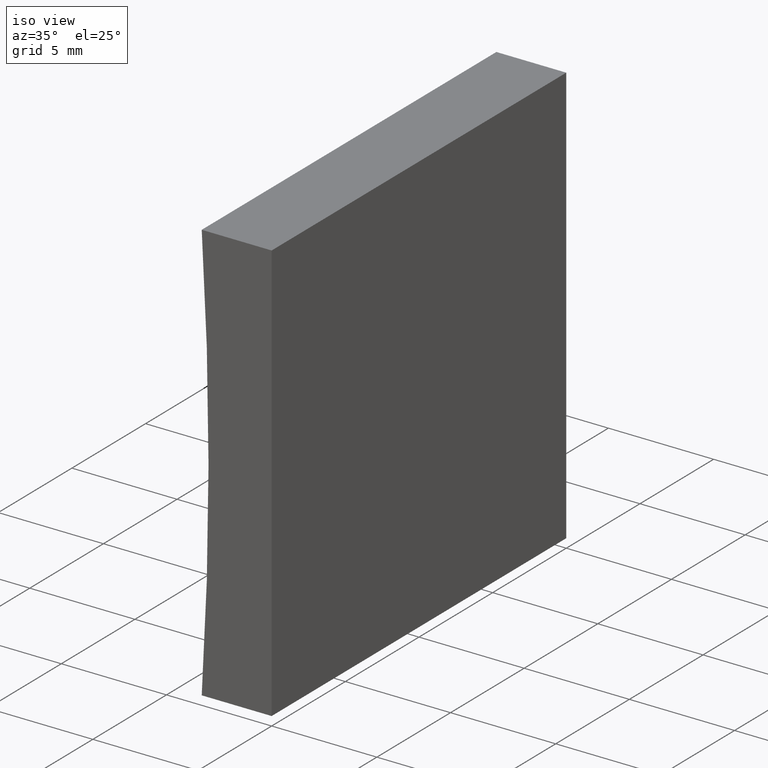
[diagram: clean part render]
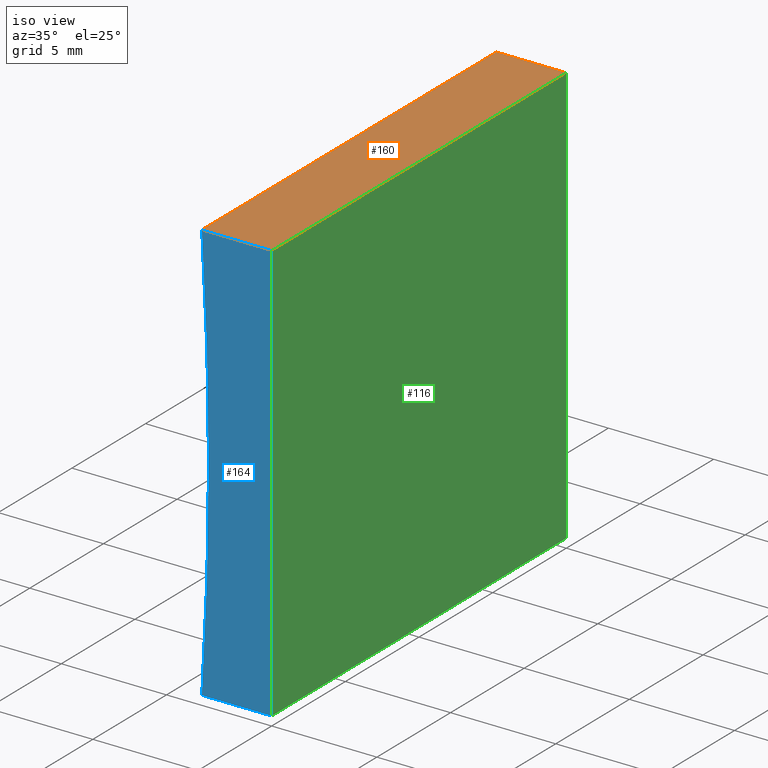
[diagram: same view with three faces highlighted in distinct colors, each labeled with its STEP entity id]
A machine part, iso view with three faces highlighted in distinct colors.
Their STEP definitions:

[orange] entity #160 — the highlighted planar face has unit normal (0, 0, -1).
#1 = LINE ( 'NONE', #199, #136 ) ;
#3 = CARTESIAN_POINT ( 'NONE',  ( 1.224646799147353300E-015, 20.00000000000000000, 20.00000000000000000 ) ) ;
#5 = CARTESIAN_POINT ( 'NONE',  ( 1.224646799147353300E-015, 20.00000000000000000, 20.00000000000000000 ) ) ;
#10 = EDGE_CURVE ( 'NONE', #130, #58, #1, .T. ) ;
#19 = ORIENTED_EDGE ( 'NONE', *, *, #66, .F. ) ;
#33 = DIRECTION ( 'NONE',  ( 1.000000000000000000, -0.0000000000000000000, -0.0000000000000000000 ) ) ;
#35 = VECTOR ( 'NONE', #39, 1000.000000000000000 ) ;
#39 = DIRECTION ( 'NONE',  ( -0.0000000000000000000, -1.000000000000000000, -0.0000000000000000000 ) ) ;
#40 = CARTESIAN_POINT ( 'NONE',  ( 1.224646799147353300E-015, 0.0000000000000000000, 20.00000000000000000 ) ) ;
#53 = DIRECTION ( 'NONE',  ( 1.000000000000000000, -0.0000000000000000000, -0.0000000000000000000 ) ) ;
#58 = VERTEX_POINT ( 'NONE', #5 ) ;
#66 = EDGE_CURVE ( 'NONE', #58, #108, #75, .T. ) ;
#67 = FACE_OUTER_BOUND ( 'NONE', #156, .T. ) ;
#75 = LINE ( 'NONE', #169, #35 ) ;
#81 = DIRECTION ( 'NONE',  ( -1.000000000000000000, 0.0000000000000000000, -0.0000000000000000000 ) ) ;
#103 = CARTESIAN_POINT ( 'NONE',  ( -3.322708383949298600, 20.00000000000000000, 20.00000000000000000 ) ) ;
#108 = VERTEX_POINT ( 'NONE', #183 ) ;
#113 = PLANE ( 'NONE',  #181 ) ;
#124 = LINE ( 'NONE', #152, #140 ) ;
#130 = VERTEX_POINT ( 'NONE', #103 ) ;
#136 = VECTOR ( 'NONE', #33, 1000.000000000000000 ) ;
#140 = VECTOR ( 'NONE', #197, 1000.000000000000000 ) ;
#142 = ORIENTED_EDGE ( 'NONE', *, *, #10, .F. ) ;
#152 = CARTESIAN_POINT ( 'NONE',  ( -3.322708383949298600, 20.00000000000000000, 20.00000000000000000 ) ) ;
#156 = EDGE_LOOP ( 'NONE', ( #202, #19, #142, #185 ) ) ;
#160 = ADVANCED_FACE ( 'NONE', ( #67 ), #113, .F. ) ;
#169 = CARTESIAN_POINT ( 'NONE',  ( 1.224646799147353300E-015, 20.00000000000000000, 20.00000000000000000 ) ) ;
#175 = VECTOR ( 'NONE', #53, 1000.000000000000000 ) ;
#181 = AXIS2_PLACEMENT_3D ( 'NONE', #3, #184, #81 ) ;
#182 = LINE ( 'NONE', #40, #175 ) ;
#183 = CARTESIAN_POINT ( 'NONE',  ( 1.224646799147353300E-015, 0.0000000000000000000, 20.00000000000000000 ) ) ;
#184 = DIRECTION ( 'NONE',  ( 0.0000000000000000000, 0.0000000000000000000, -1.000000000000000000 ) ) ;
#185 = ORIENTED_EDGE ( 'NONE', *, *, #198, .T. ) ;
#190 = CARTESIAN_POINT ( 'NONE',  ( -3.322708383949298600, 0.0000000000000000000, 20.00000000000000000 ) ) ;
#197 = DIRECTION ( 'NONE',  ( -0.0000000000000000000, -1.000000000000000000, -0.0000000000000000000 ) ) ;
#198 = EDGE_CURVE ( 'NONE', #130, #201, #124, .T. ) ;
#199 = CARTESIAN_POINT ( 'NONE',  ( 1.224646799147353300E-015, 20.00000000000000000, 20.00000000000000000 ) ) ;
#201 = VERTEX_POINT ( 'NONE', #190 ) ;
#202 = ORIENTED_EDGE ( 'NONE', *, *, #204, .T. ) ;
#204 = EDGE_CURVE ( 'NONE', #201, #108, #182, .T. ) ;

[blue] entity #164 — the highlighted planar face has unit normal (0, 1, 0).
#12 = DIRECTION ( 'NONE',  ( 0.0000000000000000000, 1.000000000000000000, 0.0000000000000000000 ) ) ;
#14 = ORIENTED_EDGE ( 'NONE', *, *, #69, .F. ) ;
#24 = CARTESIAN_POINT ( 'NONE',  ( -158.0999999999999900, 0.0000000000000000000, 10.00000000000002300 ) ) ;
#29 = EDGE_CURVE ( 'NONE', #194, #201, #195, .T. ) ;
#36 = DIRECTION ( 'NONE',  ( -1.000000000000000000, 0.0000000000000000000, 0.0000000000000000000 ) ) ;
#38 = CARTESIAN_POINT ( 'NONE',  ( -158.0999999999999900, 0.0000000000000000000, 10.00000000000002300 ) ) ;
#40 = CARTESIAN_POINT ( 'NONE',  ( 1.224646799147353300E-015, 0.0000000000000000000, 20.00000000000000000 ) ) ;
#45 = ORIENTED_EDGE ( 'NONE', *, *, #168, .F. ) ;
#46 = CARTESIAN_POINT ( 'NONE',  ( -3.322708383949296800, 0.0000000000000000000, 1.734723475976807100E-015 ) ) ;
#47 = ORIENTED_EDGE ( 'NONE', *, *, #204, .F. ) ;
#48 = DIRECTION ( 'NONE',  ( -6.123233995736766000E-017, -0.0000000000000000000, -1.000000000000000000 ) ) ;
#53 = DIRECTION ( 'NONE',  ( 1.000000000000000000, -0.0000000000000000000, -0.0000000000000000000 ) ) ;
#54 = LINE ( 'NONE', #131, #115 ) ;
#63 = VERTEX_POINT ( 'NONE', #155 ) ;
#69 = EDGE_CURVE ( 'NONE', #108, #63, #54, .T. ) ;
#80 = AXIS2_PLACEMENT_3D ( 'NONE', #24, #12, #121 ) ;
#89 = DIRECTION ( 'NONE',  ( 0.0000000000000000000, 0.0000000000000000000, 1.000000000000000000 ) ) ;
#93 = DIRECTION ( 'NONE',  ( -0.0000000000000000000, -1.000000000000000000, -0.0000000000000000000 ) ) ;
#108 = VERTEX_POINT ( 'NONE', #183 ) ;
#111 = CARTESIAN_POINT ( 'NONE',  ( 0.0000000000000000000, 0.0000000000000000000, 0.0000000000000000000 ) ) ;
#115 = VECTOR ( 'NONE', #48, 1000.000000000000000 ) ;
#121 = DIRECTION ( 'NONE',  ( 0.0000000000000000000, -0.0000000000000000000, 1.000000000000000000 ) ) ;
#127 = VECTOR ( 'NONE', #36, 1000.000000000000000 ) ;
#131 = CARTESIAN_POINT ( 'NONE',  ( 0.0000000000000000000, 0.0000000000000000000, 0.0000000000000000000 ) ) ;
#141 = AXIS2_PLACEMENT_3D ( 'NONE', #38, #93, #89 ) ;
#143 = ORIENTED_EDGE ( 'NONE', *, *, #29, .F. ) ;
#146 = EDGE_LOOP ( 'NONE', ( #45, #14, #47, #143 ) ) ;
#148 = LINE ( 'NONE', #111, #127 ) ;
#155 = CARTESIAN_POINT ( 'NONE',  ( 0.0000000000000000000, 0.0000000000000000000, 0.0000000000000000000 ) ) ;
#164 = ADVANCED_FACE ( 'NONE', ( #165 ), #187, .F. ) ;
#165 = FACE_OUTER_BOUND ( 'NONE', #146, .T. ) ;
#168 = EDGE_CURVE ( 'NONE', #63, #194, #148, .T. ) ;
#175 = VECTOR ( 'NONE', #53, 1000.000000000000000 ) ;
#182 = LINE ( 'NONE', #40, #175 ) ;
#183 = CARTESIAN_POINT ( 'NONE',  ( 1.224646799147353300E-015, 0.0000000000000000000, 20.00000000000000000 ) ) ;
#187 = PLANE ( 'NONE',  #80 ) ;
#190 = CARTESIAN_POINT ( 'NONE',  ( -3.322708383949298600, 0.0000000000000000000, 20.00000000000000000 ) ) ;
#194 = VERTEX_POINT ( 'NONE', #46 ) ;
#195 = CIRCLE ( 'NONE', #141, 155.1000000000000200 ) ;
#201 = VERTEX_POINT ( 'NONE', #190 ) ;
#204 = EDGE_CURVE ( 'NONE', #201, #108, #182, .T. ) ;

[green] entity #116 — the highlighted planar face has unit normal (-1, 0, 0).
#5 = CARTESIAN_POINT ( 'NONE',  ( 1.224646799147353300E-015, 20.00000000000000000, 20.00000000000000000 ) ) ;
#6 = PLANE ( 'NONE',  #104 ) ;
#21 = LINE ( 'NONE', #137, #97 ) ;
#30 = ORIENTED_EDGE ( 'NONE', *, *, #69, .T. ) ;
#34 = DIRECTION ( 'NONE',  ( -1.000000000000000000, 0.0000000000000000000, 6.123233995736766000E-017 ) ) ;
#35 = VECTOR ( 'NONE', #39, 1000.000000000000000 ) ;
#39 = DIRECTION ( 'NONE',  ( -0.0000000000000000000, -1.000000000000000000, -0.0000000000000000000 ) ) ;
#48 = DIRECTION ( 'NONE',  ( -6.123233995736766000E-017, -0.0000000000000000000, -1.000000000000000000 ) ) ;
#54 = LINE ( 'NONE', #131, #115 ) ;
#56 = ORIENTED_EDGE ( 'NONE', *, *, #70, .F. ) ;
#58 = VERTEX_POINT ( 'NONE', #5 ) ;
#63 = VERTEX_POINT ( 'NONE', #155 ) ;
#66 = EDGE_CURVE ( 'NONE', #58, #108, #75, .T. ) ;
#69 = EDGE_CURVE ( 'NONE', #108, #63, #54, .T. ) ;
#70 = EDGE_CURVE ( 'NONE', #114, #63, #94, .T. ) ;
#75 = LINE ( 'NONE', #169, #35 ) ;
#85 = CARTESIAN_POINT ( 'NONE',  ( 0.0000000000000000000, 20.00000000000000000, 0.0000000000000000000 ) ) ;
#94 = LINE ( 'NONE', #196, #132 ) ;
#95 = DIRECTION ( 'NONE',  ( -0.0000000000000000000, -1.000000000000000000, -0.0000000000000000000 ) ) ;
#97 = VECTOR ( 'NONE', #177, 1000.000000000000000 ) ;
#98 = ORIENTED_EDGE ( 'NONE', *, *, #66, .T. ) ;
#102 = DIRECTION ( 'NONE',  ( 6.123233995736766000E-017, 0.0000000000000000000, 1.000000000000000000 ) ) ;
#104 = AXIS2_PLACEMENT_3D ( 'NONE', #85, #34, #102 ) ;
#108 = VERTEX_POINT ( 'NONE', #183 ) ;
#114 = VERTEX_POINT ( 'NONE', #157 ) ;
#115 = VECTOR ( 'NONE', #48, 1000.000000000000000 ) ;
#116 = ADVANCED_FACE ( 'NONE', ( #173 ), #6, .F. ) ;
#119 = ORIENTED_EDGE ( 'NONE', *, *, #174, .F. ) ;
#131 = CARTESIAN_POINT ( 'NONE',  ( 0.0000000000000000000, 0.0000000000000000000, 0.0000000000000000000 ) ) ;
#132 = VECTOR ( 'NONE', #95, 1000.000000000000000 ) ;
#137 = CARTESIAN_POINT ( 'NONE',  ( 0.0000000000000000000, 20.00000000000000000, 0.0000000000000000000 ) ) ;
#155 = CARTESIAN_POINT ( 'NONE',  ( 0.0000000000000000000, 0.0000000000000000000, 0.0000000000000000000 ) ) ;
#157 = CARTESIAN_POINT ( 'NONE',  ( 0.0000000000000000000, 20.00000000000000000, 0.0000000000000000000 ) ) ;
#169 = CARTESIAN_POINT ( 'NONE',  ( 1.224646799147353300E-015, 20.00000000000000000, 20.00000000000000000 ) ) ;
#173 = FACE_OUTER_BOUND ( 'NONE', #176, .T. ) ;
#174 = EDGE_CURVE ( 'NONE', #58, #114, #21, .T. ) ;
#176 = EDGE_LOOP ( 'NONE', ( #30, #56, #119, #98 ) ) ;
#177 = DIRECTION ( 'NONE',  ( -6.123233995736766000E-017, -0.0000000000000000000, -1.000000000000000000 ) ) ;
#183 = CARTESIAN_POINT ( 'NONE',  ( 1.224646799147353300E-015, 0.0000000000000000000, 20.00000000000000000 ) ) ;
#196 = CARTESIAN_POINT ( 'NONE',  ( 0.0000000000000000000, 20.00000000000000000, 0.0000000000000000000 ) ) ;